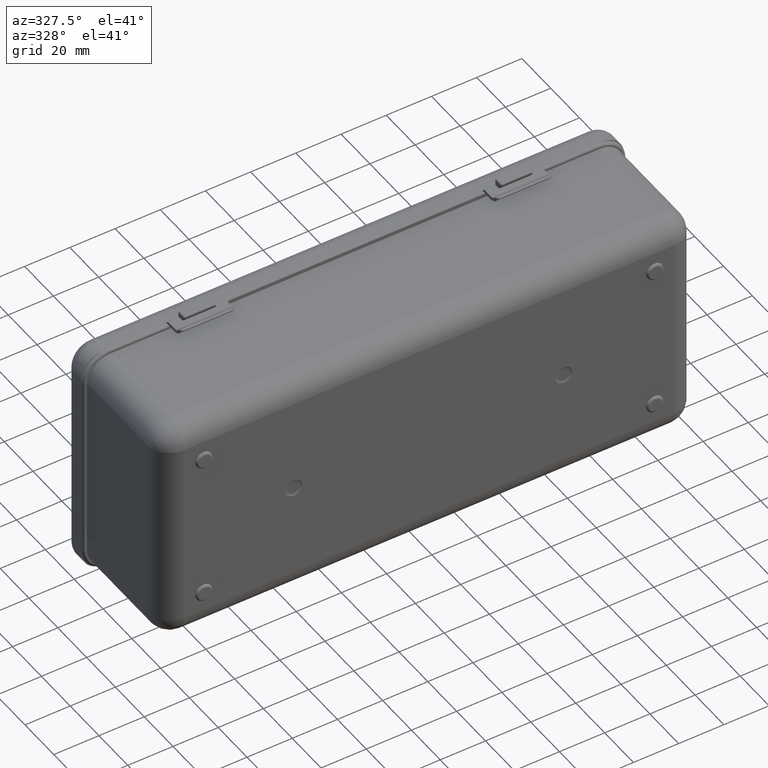
[diagram: clean part render]
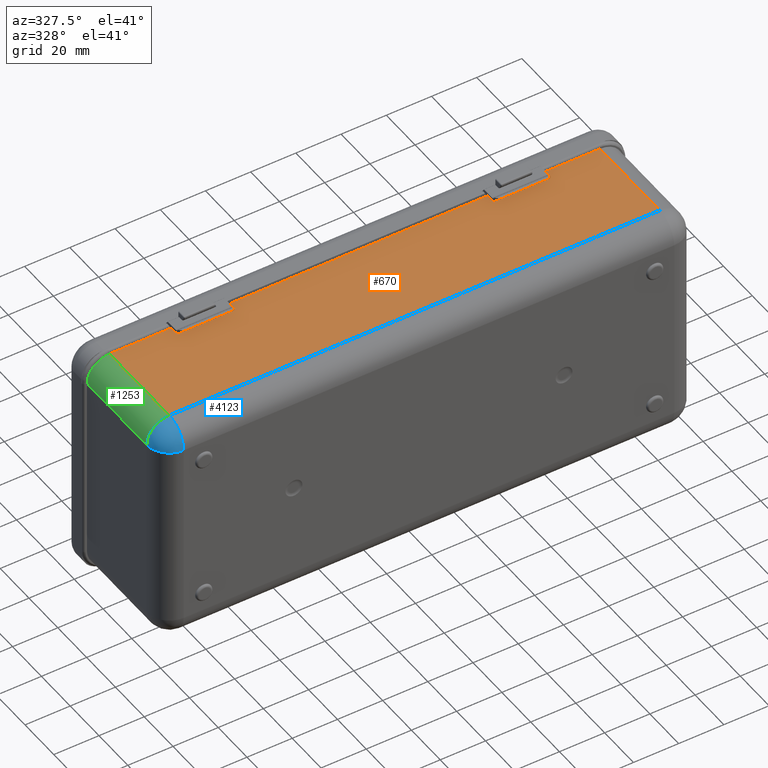
[diagram: same view with three faces highlighted in distinct colors, each labeled with its STEP entity id]
A machine part, auxiliary view with three faces highlighted in distinct colors.
Their STEP definitions:

[orange] entity #670 — the highlighted planar face has unit normal (0, 0, -1).
#134 = DIRECTION ( 'NONE',  ( 2.392722035830078479E-16, 1.000000000000000000, 0.0000000000000000000 ) ) ;
#322 = EDGE_CURVE ( 'NONE', #8254, #483, #655, .T. ) ;
#483 = VERTEX_POINT ( 'NONE', #2298 ) ;
#517 = VECTOR ( 'NONE', #6333, 1000.000000000000000 ) ;
#655 = LINE ( 'NONE', #4946, #517 ) ;
#670 = ADVANCED_FACE ( 'NONE', ( #3884 ), #2486, .F. ) ;
#767 = CARTESIAN_POINT ( 'NONE',  ( 108.5000000000000000, -48.00000000000000000, 51.39999999999999858 ) ) ;
#1081 = CARTESIAN_POINT ( 'NONE',  ( 0.0000000000000000000, 0.0000000000000000000, 51.39999999999999858 ) ) ;
#1513 = DIRECTION ( 'NONE',  ( 1.000000000000000000, 0.0000000000000000000, 0.0000000000000000000 ) ) ;
#1557 = LINE ( 'NONE', #767, #6509 ) ;
#1656 = ORIENTED_EDGE ( 'NONE', *, *, #2564, .F. ) ;
#1668 = VERTEX_POINT ( 'NONE', #9161 ) ;
#2298 = CARTESIAN_POINT ( 'NONE',  ( -108.4999999999999858, -48.00000000000000000, 51.39999999999999858 ) ) ;
#2415 = EDGE_LOOP ( 'NONE', ( #8604, #1656, #6256, #4173 ) ) ;
#2486 = PLANE ( 'NONE',  #8696 ) ;
#2564 = EDGE_CURVE ( 'NONE', #8254, #1668, #7240, .T. ) ;
#2607 = EDGE_CURVE ( 'NONE', #483, #4853, #1557, .T. ) ;
#2880 = LINE ( 'NONE', #5697, #7410 ) ;
#2949 = VECTOR ( 'NONE', #6396, 1000.000000000000000 ) ;
#3223 = DIRECTION ( 'NONE',  ( -1.000000000000000000, 0.0000000000000000000, -0.0000000000000000000 ) ) ;
#3884 = FACE_OUTER_BOUND ( 'NONE', #2415, .T. ) ;
#3922 = DIRECTION ( 'NONE',  ( 0.0000000000000000000, 0.0000000000000000000, -1.000000000000000000 ) ) ;
#4173 = ORIENTED_EDGE ( 'NONE', *, *, #2607, .T. ) ;
#4853 = VERTEX_POINT ( 'NONE', #5137 ) ;
#4946 = CARTESIAN_POINT ( 'NONE',  ( -108.4999999999999716, 2.596103408875634400E-14, 51.39999999999999858 ) ) ;
#5137 = CARTESIAN_POINT ( 'NONE',  ( 108.5000000000000142, -48.00000000000000000, 51.39999999999999858 ) ) ;
#5691 = CARTESIAN_POINT ( 'NONE',  ( -108.4999999999999574, -6.500000000000004441, 51.39999999999999858 ) ) ;
#5697 = CARTESIAN_POINT ( 'NONE',  ( 108.5000000000000284, -2.596103408875635978E-14, 51.39999999999999858 ) ) ;
#5706 = EDGE_CURVE ( 'NONE', #4853, #1668, #2880, .T. ) ;
#6256 = ORIENTED_EDGE ( 'NONE', *, *, #322, .T. ) ;
#6333 = DIRECTION ( 'NONE',  ( -2.392722035830078479E-16, -1.000000000000000000, -0.0000000000000000000 ) ) ;
#6396 = DIRECTION ( 'NONE',  ( 1.000000000000000000, 0.0000000000000000000, 0.0000000000000000000 ) ) ;
#6509 = VECTOR ( 'NONE', #1513, 1000.000000000000000 ) ;
#7240 = LINE ( 'NONE', #7921, #2949 ) ;
#7410 = VECTOR ( 'NONE', #134, 1000.000000000000000 ) ;
#7921 = CARTESIAN_POINT ( 'NONE',  ( -108.4999999999999574, -6.500000000000004441, 51.39999999999999858 ) ) ;
#8254 = VERTEX_POINT ( 'NONE', #5691 ) ;
#8604 = ORIENTED_EDGE ( 'NONE', *, *, #5706, .T. ) ;
#8696 = AXIS2_PLACEMENT_3D ( 'NONE', #1081, #3922, #3223 ) ;
#9161 = CARTESIAN_POINT ( 'NONE',  ( 108.5000000000000284, -6.500000000000004441, 51.39999999999999858 ) ) ;

[blue] entity #4123 — the highlighted spherical surface has radius 10 mm.
#342 = DIRECTION ( 'NONE',  ( -1.000000000000000000, 0.0000000000000000000, 0.0000000000000000000 ) ) ;
#483 = VERTEX_POINT ( 'NONE', #2298 ) ;
#528 = CARTESIAN_POINT ( 'NONE',  ( -108.4999999999999858, -48.00000000000000000, 41.39999999999999858 ) ) ;
#719 = ORIENTED_EDGE ( 'NONE', *, *, #4591, .T. ) ;
#851 = CIRCLE ( 'NONE', #9007, 10.00000000000000178 ) ;
#1141 = DIRECTION ( 'NONE',  ( -1.000000000000000000, 0.0000000000000000000, 0.0000000000000000000 ) ) ;
#1329 = CIRCLE ( 'NONE', #7429, 9.999999999999994671 ) ;
#1373 = DIRECTION ( 'NONE',  ( 1.000000000000000000, 0.0000000000000000000, 0.0000000000000000000 ) ) ;
#1518 = CARTESIAN_POINT ( 'NONE',  ( -108.4999999999999858, -48.00000000000000000, 41.39999999999999858 ) ) ;
#1719 = VERTEX_POINT ( 'NONE', #7128 ) ;
#1735 = AXIS2_PLACEMENT_3D ( 'NONE', #1518, #1373, #4360 ) ;
#1910 = AXIS2_PLACEMENT_3D ( 'NONE', #9069, #2715, #5529 ) ;
#2298 = CARTESIAN_POINT ( 'NONE',  ( -108.4999999999999858, -48.00000000000000000, 51.39999999999999858 ) ) ;
#2715 = DIRECTION ( 'NONE',  ( 0.0000000000000000000, 0.0000000000000000000, 1.000000000000000000 ) ) ;
#3304 = EDGE_CURVE ( 'NONE', #7871, #483, #1329, .T. ) ;
#3380 = DIRECTION ( 'NONE',  ( 2.392722035830078479E-16, 1.000000000000000000, 0.0000000000000000000 ) ) ;
#3871 = CARTESIAN_POINT ( 'NONE',  ( -118.4999999999999858, -48.00000000000000000, 41.39999999999999858 ) ) ;
#4123 = ADVANCED_FACE ( 'NONE', ( #8588 ), #7741, .T. ) ;
#4360 = DIRECTION ( 'NONE',  ( 0.0000000000000000000, 0.0000000000000000000, -1.000000000000000000 ) ) ;
#4441 = CIRCLE ( 'NONE', #1910, 9.999999999999994671 ) ;
#4591 = EDGE_CURVE ( 'NONE', #1719, #483, #851, .T. ) ;
#4818 = ORIENTED_EDGE ( 'NONE', *, *, #5216, .T. ) ;
#5216 = EDGE_CURVE ( 'NONE', #7871, #1719, #4441, .T. ) ;
#5529 = DIRECTION ( 'NONE',  ( 1.000000000000000000, 0.0000000000000000000, 0.0000000000000000000 ) ) ;
#6111 = CARTESIAN_POINT ( 'NONE',  ( -108.4999999999999858, -48.00000000000000000, 41.39999999999999858 ) ) ;
#7094 = EDGE_LOOP ( 'NONE', ( #719, #8945, #4818 ) ) ;
#7128 = CARTESIAN_POINT ( 'NONE',  ( -108.4999999999999858, -58.00000000000000000, 41.39999999999999858 ) ) ;
#7429 = AXIS2_PLACEMENT_3D ( 'NONE', #528, #3380, #1141 ) ;
#7741 = SPHERICAL_SURFACE ( 'NONE', #1735, 10.00000000000000000 ) ;
#7871 = VERTEX_POINT ( 'NONE', #3871 ) ;
#8588 = FACE_OUTER_BOUND ( 'NONE', #7094, .T. ) ;
#8940 = DIRECTION ( 'NONE',  ( 0.0000000000000000000, 0.0000000000000000000, 1.000000000000000000 ) ) ;
#8945 = ORIENTED_EDGE ( 'NONE', *, *, #3304, .F. ) ;
#9007 = AXIS2_PLACEMENT_3D ( 'NONE', #6111, #342, #8940 ) ;
#9069 = CARTESIAN_POINT ( 'NONE',  ( -108.4999999999999858, -48.00000000000000000, 41.39999999999999858 ) ) ;

[green] entity #1253 — the highlighted cylindrical surface (edge-blend (fillet) strip) has radius 10 mm, axis along (0, 1, 0).
#196 = ORIENTED_EDGE ( 'NONE', *, *, #3304, .T. ) ;
#322 = EDGE_CURVE ( 'NONE', #8254, #483, #655, .T. ) ;
#483 = VERTEX_POINT ( 'NONE', #2298 ) ;
#517 = VECTOR ( 'NONE', #6333, 1000.000000000000000 ) ;
#528 = CARTESIAN_POINT ( 'NONE',  ( -108.4999999999999858, -48.00000000000000000, 41.39999999999999858 ) ) ;
#655 = LINE ( 'NONE', #4946, #517 ) ;
#971 =( BOUNDED_CURVE ( )  B_SPLINE_CURVE ( 3, ( #8257, #1232, #3390, #6216 ),
 .UNSPECIFIED., .F., .T. ) 
 B_SPLINE_CURVE_WITH_KNOTS ( ( 4, 4 ),
 ( 1.570796326794896558, 3.141592653589794448 ),
 .UNSPECIFIED. ) 
 CURVE ( )  GEOMETRIC_REPRESENTATION_ITEM ( )  RATIONAL_B_SPLINE_CURVE ( ( 1.000000000000000000, 0.8047378541243646044, 0.8047378541243646044, 1.000000000000000000 ) ) 
 REPRESENTATION_ITEM ( '' )  );
#1141 = DIRECTION ( 'NONE',  ( -1.000000000000000000, 0.0000000000000000000, 0.0000000000000000000 ) ) ;
#1232 = CARTESIAN_POINT ( 'NONE',  ( -118.4999999999999432, -6.500000000000003553, 47.25786437626905467 ) ) ;
#1253 = ADVANCED_FACE ( 'NONE', ( #3426 ), #6251, .T. ) ;
#1329 = CIRCLE ( 'NONE', #7429, 9.999999999999994671 ) ;
#2298 = CARTESIAN_POINT ( 'NONE',  ( -108.4999999999999858, -48.00000000000000000, 51.39999999999999858 ) ) ;
#2724 = DIRECTION ( 'NONE',  ( 2.392722035830078479E-16, 1.000000000000000000, 0.0000000000000000000 ) ) ;
#2866 = EDGE_CURVE ( 'NONE', #9104, #8254, #971, .T. ) ;
#3304 = EDGE_CURVE ( 'NONE', #7871, #483, #1329, .T. ) ;
#3380 = DIRECTION ( 'NONE',  ( 2.392722035830078479E-16, 1.000000000000000000, 0.0000000000000000000 ) ) ;
#3390 = CARTESIAN_POINT ( 'NONE',  ( -114.3578643762690064, -6.500000000000003553, 51.39999999999999858 ) ) ;
#3426 = FACE_OUTER_BOUND ( 'NONE', #5154, .T. ) ;
#3868 = EDGE_CURVE ( 'NONE', #7871, #9104, #8776, .T. ) ;
#3871 = CARTESIAN_POINT ( 'NONE',  ( -118.4999999999999858, -48.00000000000000000, 41.39999999999999858 ) ) ;
#3955 = CARTESIAN_POINT ( 'NONE',  ( -118.4999999999999716, 2.835375612458642090E-14, 41.39999999999999858 ) ) ;
#4776 = ORIENTED_EDGE ( 'NONE', *, *, #3868, .F. ) ;
#4946 = CARTESIAN_POINT ( 'NONE',  ( -108.4999999999999716, 2.596103408875634400E-14, 51.39999999999999858 ) ) ;
#5154 = EDGE_LOOP ( 'NONE', ( #7555, #4776, #196, #6374 ) ) ;
#5384 = DIRECTION ( 'NONE',  ( 2.392722035830078479E-16, 1.000000000000000000, 0.0000000000000000000 ) ) ;
#5542 = DIRECTION ( 'NONE',  ( -1.000000000000000000, 2.392722035830078479E-16, 0.0000000000000000000 ) ) ;
#5586 = AXIS2_PLACEMENT_3D ( 'NONE', #9078, #2724, #5542 ) ;
#5691 = CARTESIAN_POINT ( 'NONE',  ( -108.4999999999999574, -6.500000000000004441, 51.39999999999999858 ) ) ;
#6216 = CARTESIAN_POINT ( 'NONE',  ( -108.4999999999999574, -6.500000000000004441, 51.39999999999999858 ) ) ;
#6251 = CYLINDRICAL_SURFACE ( 'NONE', #5586, 9.999999999999994671 ) ;
#6333 = DIRECTION ( 'NONE',  ( -2.392722035830078479E-16, -1.000000000000000000, -0.0000000000000000000 ) ) ;
#6374 = ORIENTED_EDGE ( 'NONE', *, *, #322, .F. ) ;
#7368 = VECTOR ( 'NONE', #5384, 1000.000000000000000 ) ;
#7429 = AXIS2_PLACEMENT_3D ( 'NONE', #528, #3380, #1141 ) ;
#7555 = ORIENTED_EDGE ( 'NONE', *, *, #2866, .F. ) ;
#7871 = VERTEX_POINT ( 'NONE', #3871 ) ;
#8254 = VERTEX_POINT ( 'NONE', #5691 ) ;
#8257 = CARTESIAN_POINT ( 'NONE',  ( -118.4999999999999716, -6.500000000000002665, 41.39999999999999858 ) ) ;
#8606 = CARTESIAN_POINT ( 'NONE',  ( -118.4999999999999716, -6.500000000000002665, 41.39999999999999858 ) ) ;
#8776 = LINE ( 'NONE', #3955, #7368 ) ;
#9078 = CARTESIAN_POINT ( 'NONE',  ( -108.4999999999999716, 2.596103408875634400E-14, 41.39999999999999858 ) ) ;
#9104 = VERTEX_POINT ( 'NONE', #8606 ) ;